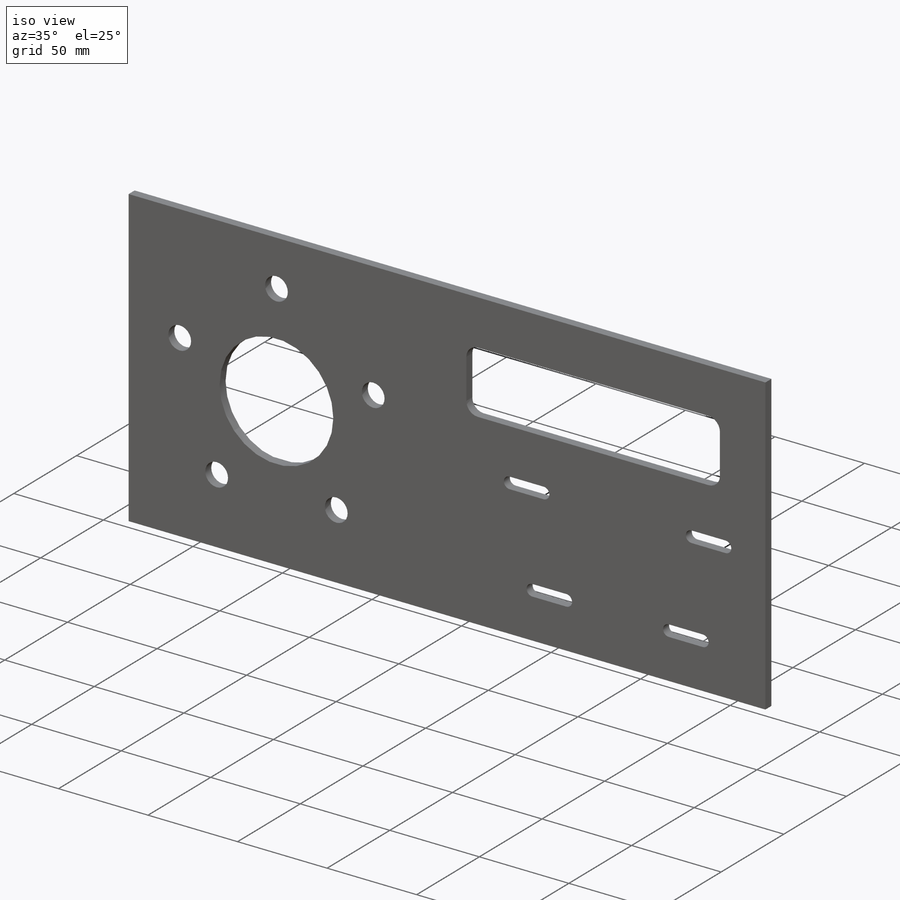
[diagram: iso view]
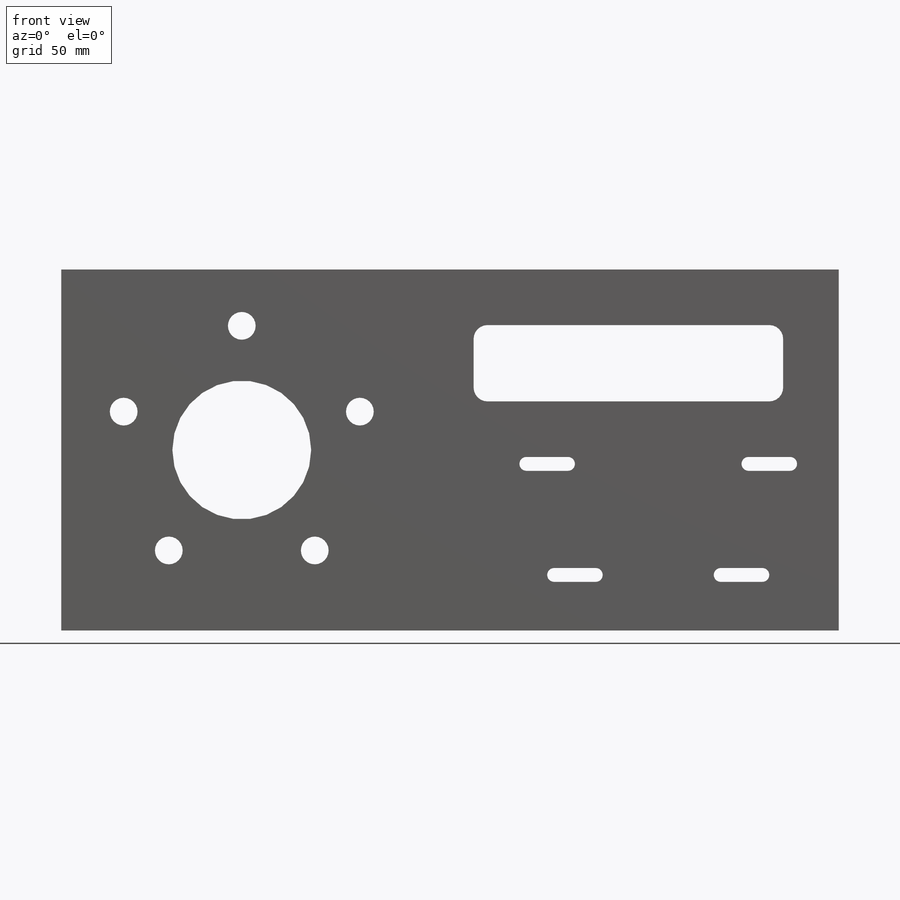
[diagram: front view]
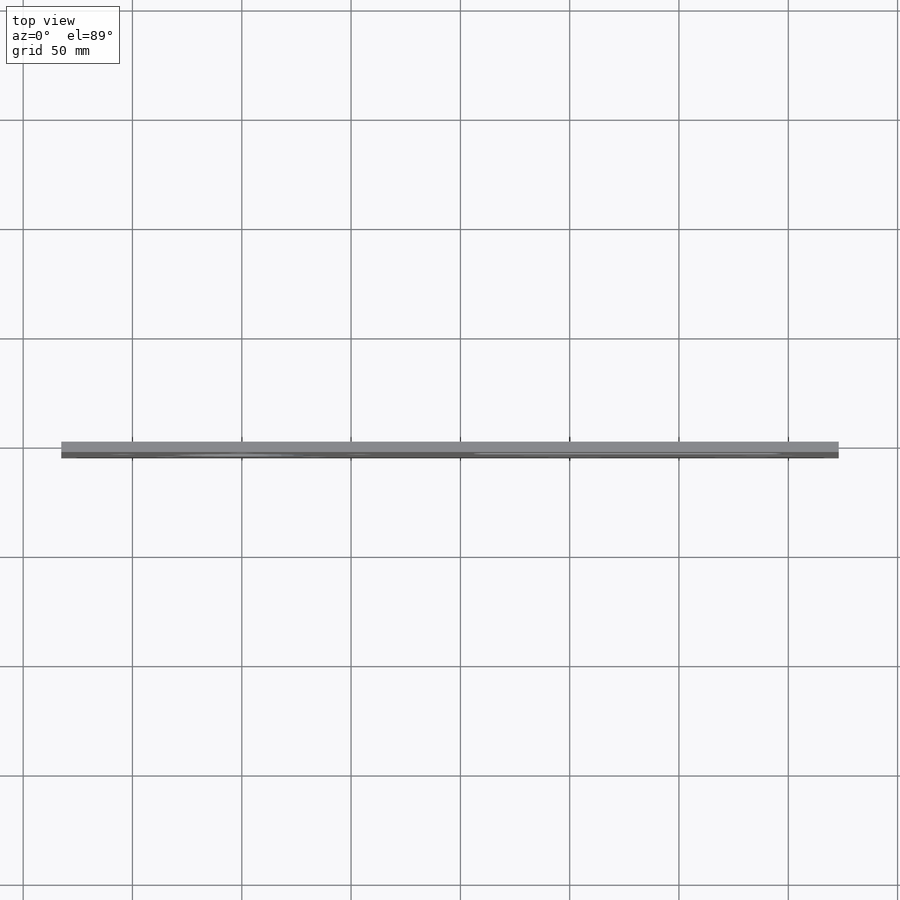
[diagram: top view]
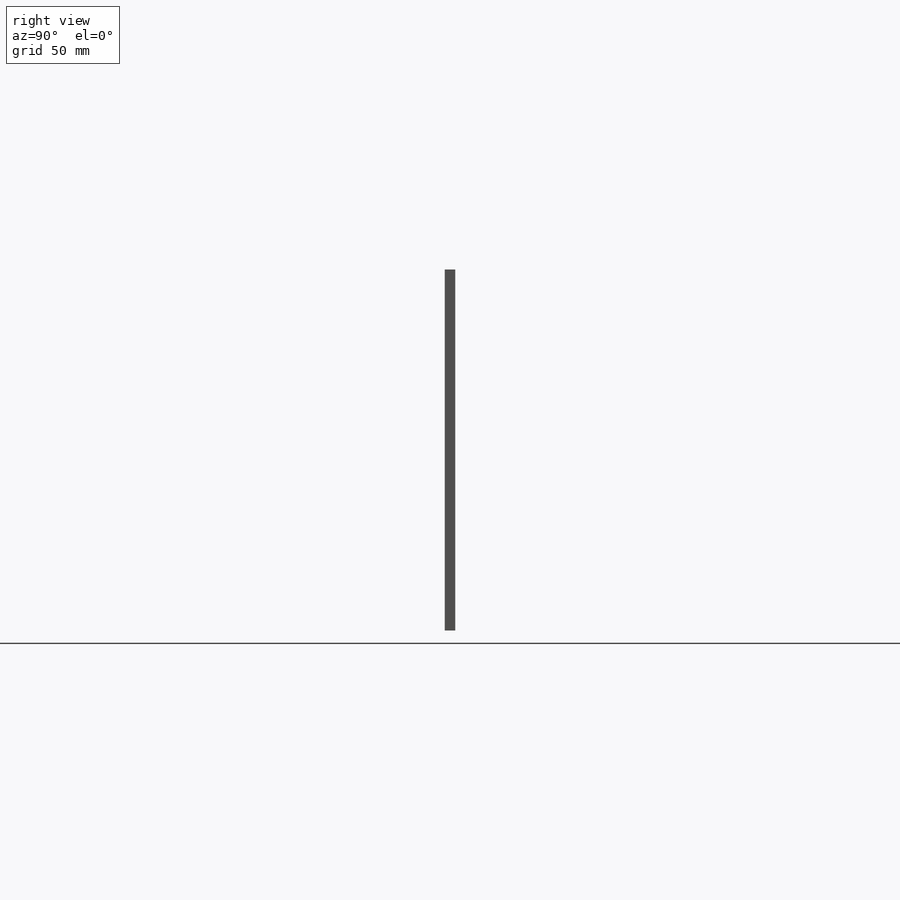
[diagram: right view]
SOLIDWORKS PART (.sldprt)
format: sldprt  version: not decoded by parser v0  size: 284,672 bytes
history: native  units: mm
features: sketch x4, plane x2, cut_extrude x2, material x1, extrude x1 (+16 scaffold rows collapsed)
feature tree (26):
  scaffold x16  (default folders/planes/origin — collapsed)
  material  "ASTM A36 Steel"
  plane  "Plane1"  Offset=190.5mm
  sketch  "Sketch1"  dims[D1=0.0mm]
  sketch  "Sketch2"  dims[D1=63.5mm D2=165.1mm D3=82.55mm D4=355.6mm]
  extrude  "Boss-Extrude1"  Depth=3.175mm
  sketch  "Sketch3"  dims[D1=50.8mm D2=101.6mm D3=76.2mm D4=88.9mm D5=19.05mm D6=6.35mm]
  cut_extrude  "Cut-Extrude1"  [1 undecoded]
  plane  "Plane2"
  sketch  "Sketch4"  dims[c1.D4=6.35mm c1.D1=25.4mm c1.D2=25.4mm c1.D3=25.4mm c2.D4=~98.152888mm c2.D5=25.4mm]
  cut_extrude  "Cut-Extrude3"  [1 undecoded]
decode coverage: 5 of 7 modeling features carry decoded parameters
note: ~ marks probable driven/reference dimensions
note: 2 parameter values undecoded
note: suppression state not decoded; provenance and decode notes live in map.json
